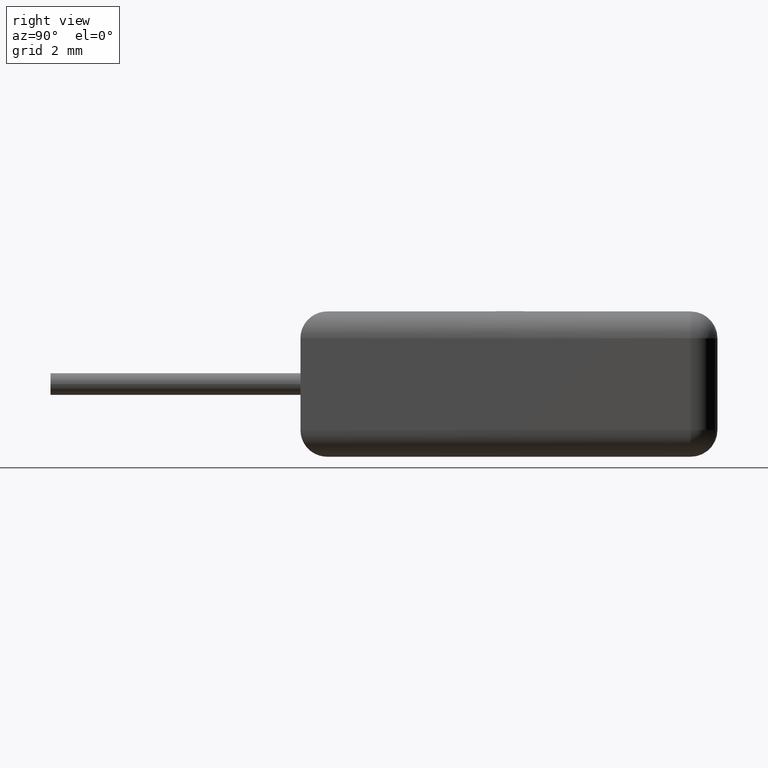
[diagram: clean part render]
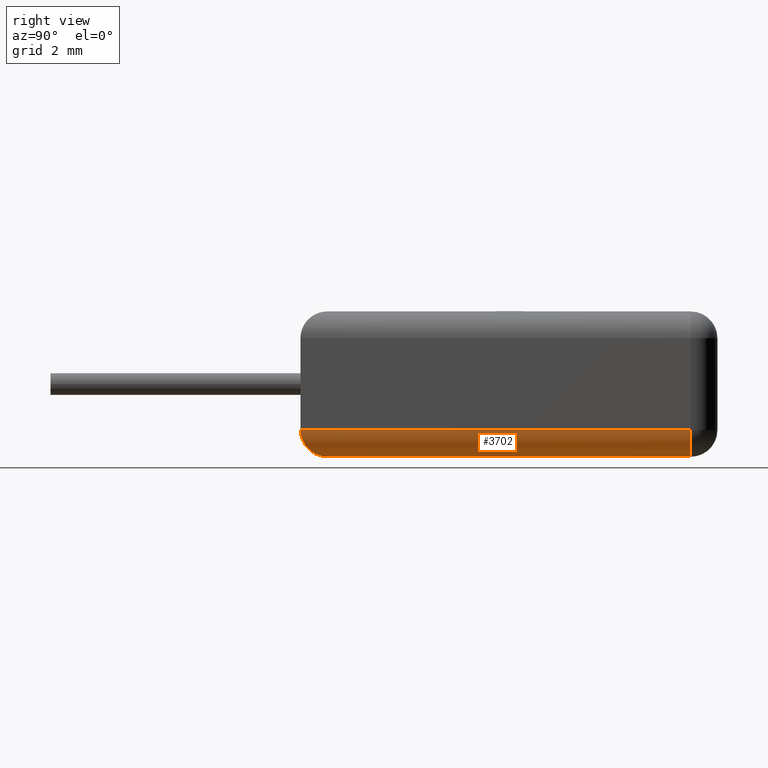
[diagram: same view with one face highlighted and labeled with its STEP entity id]
A machine part, right view. The second image highlights one B-rep face of the part: STEP entity #3702.
In plain terms, the highlighted cylindrical surface (edge-blend (fillet) strip) has radius 0.75 mm, axis along (0, -1, 0).
Its self-contained STEP definition (entity closure, byte-faithful):
#280 = EDGE_CURVE ( 'NONE', #3156, #2198, #920, .T. ) ;
#344 = DIRECTION ( 'NONE',  ( 0.0000000000000000000, 0.0000000000000000000, 1.000000000000000000 ) ) ;
#432 = CARTESIAN_POINT ( 'NONE',  ( 0.0000000000000000000, 11.67999999999999800, 0.7499999999999997800 ) ) ;
#536 = VERTEX_POINT ( 'NONE', #3628 ) ;
#572 = ORIENTED_EDGE ( 'NONE', *, *, #1058, .T. ) ;
#636 = CARTESIAN_POINT ( 'NONE',  ( -0.7500000000000000000, 10.92999999999999600, 0.7499999999999997800 ) ) ;
#688 = EDGE_CURVE ( 'NONE', #536, #3431, #2174, .T. ) ;
#920 = LINE ( 'NONE', #432, #2040 ) ;
#966 = CARTESIAN_POINT ( 'NONE',  ( 0.0000000000000000000, 0.0000000000000000000, 0.7499999999999997800 ) ) ;
#1058 = EDGE_CURVE ( 'NONE', #3156, #3431, #2608, .T. ) ;
#1309 = CARTESIAN_POINT ( 'NONE',  ( -0.7500000000000000000, 0.0000000000000000000, 0.0000000000000000000 ) ) ;
#1317 = VECTOR ( 'NONE', #1900, 1000.000000000000000 ) ;
#1534 = CARTESIAN_POINT ( 'NONE',  ( -0.7500000000000000000, 0.7499999999999998900, 0.0000000000000000000 ) ) ;
#1555 = EDGE_LOOP ( 'NONE', ( #572, #2511, #2784, #1891 ) ) ;
#1795 = CARTESIAN_POINT ( 'NONE',  ( -0.3106601717798213600, 0.3106601717798216400, -2.874916673636920400E-016 ) ) ;
#1891 = ORIENTED_EDGE ( 'NONE', *, *, #280, .F. ) ;
#1900 = DIRECTION ( 'NONE',  ( -0.0000000000000000000, -1.000000000000000000, -0.0000000000000000000 ) ) ;
#2040 = VECTOR ( 'NONE', #2537, 1000.000000000000000 ) ;
#2118 = AXIS2_PLACEMENT_3D ( 'NONE', #636, #2658, #344 ) ;
#2174 = LINE ( 'NONE', #1309, #1317 ) ;
#2198 = VERTEX_POINT ( 'NONE', #3304 ) ;
#2382 = CYLINDRICAL_SURFACE ( 'NONE', #3264, 0.7500000000000000000 ) ;
#2511 = ORIENTED_EDGE ( 'NONE', *, *, #688, .F. ) ;
#2537 = DIRECTION ( 'NONE',  ( 0.0000000000000000000, 1.000000000000000000, 0.0000000000000000000 ) ) ;
#2580 = EDGE_CURVE ( 'NONE', #2198, #536, #2765, .T. ) ;
#2608 =( BOUNDED_CURVE ( )  B_SPLINE_CURVE ( 3, ( #3207, #3485, #1795, #1534 ),
 .UNSPECIFIED., .F., .T. ) 
 B_SPLINE_CURVE_WITH_KNOTS ( ( 4, 4 ),
 ( 0.0000000000000000000, 1.570796326794896800 ),
 .UNSPECIFIED. ) 
 CURVE ( )  GEOMETRIC_REPRESENTATION_ITEM ( )  RATIONAL_B_SPLINE_CURVE ( ( 1.000000000000000000, 0.8047378541243649400, 0.8047378541243649400, 1.000000000000000000 ) ) 
 REPRESENTATION_ITEM ( '' )  );
#2658 = DIRECTION ( 'NONE',  ( -0.0000000000000000000, 1.000000000000000000, 0.0000000000000000000 ) ) ;
#2664 = CARTESIAN_POINT ( 'NONE',  ( -0.7500000000000000000, 0.7499999999999998900, 0.0000000000000000000 ) ) ;
#2765 = CIRCLE ( 'NONE', #2118, 0.7500000000000000000 ) ;
#2784 = ORIENTED_EDGE ( 'NONE', *, *, #2580, .F. ) ;
#3101 = FACE_OUTER_BOUND ( 'NONE', #1555, .T. ) ;
#3156 = VERTEX_POINT ( 'NONE', #966 ) ;
#3207 = CARTESIAN_POINT ( 'NONE',  ( 0.0000000000000000000, 0.0000000000000000000, 0.7499999999999997800 ) ) ;
#3264 = AXIS2_PLACEMENT_3D ( 'NONE', #3584, #3573, #3329 ) ;
#3304 = CARTESIAN_POINT ( 'NONE',  ( 0.0000000000000000000, 10.92999999999999600, 0.7499999999999997800 ) ) ;
#3329 = DIRECTION ( 'NONE',  ( 0.0000000000000000000, 0.0000000000000000000, -1.000000000000000000 ) ) ;
#3431 = VERTEX_POINT ( 'NONE', #2664 ) ;
#3485 = CARTESIAN_POINT ( 'NONE',  ( 0.0000000000000000000, 3.252606517456513300E-016, 0.3106601717798211400 ) ) ;
#3573 = DIRECTION ( 'NONE',  ( 0.0000000000000000000, -1.000000000000000000, 0.0000000000000000000 ) ) ;
#3584 = CARTESIAN_POINT ( 'NONE',  ( -0.7500000000000000000, 11.67999999999999800, 0.7499999999999997800 ) ) ;
#3628 = CARTESIAN_POINT ( 'NONE',  ( -0.7500000000000000000, 10.92999999999999600, 0.0000000000000000000 ) ) ;
#3702 = ADVANCED_FACE ( 'NONE', ( #3101 ), #2382, .T. ) ;